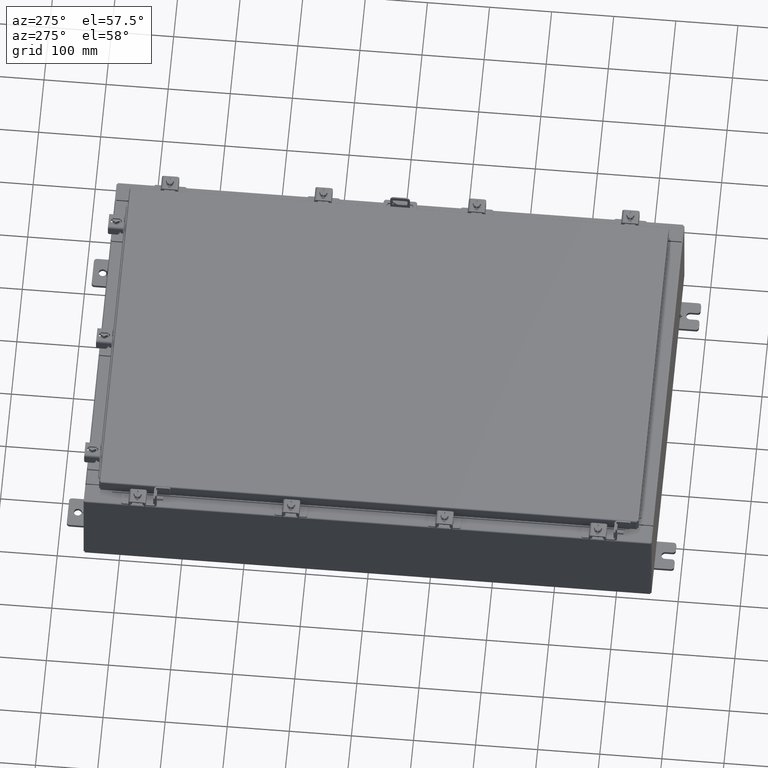
[diagram: clean part render]
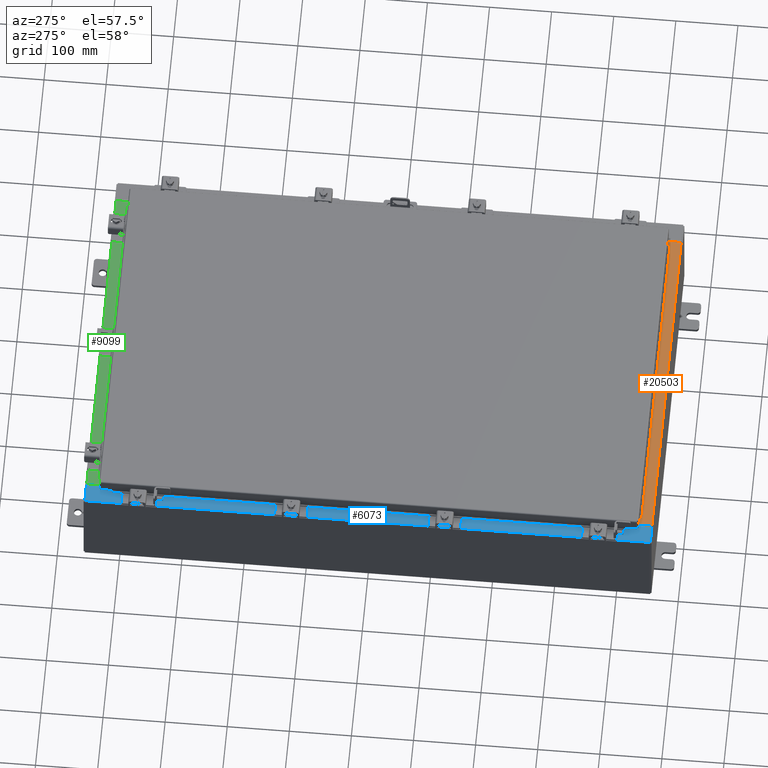
[diagram: same view with three faces highlighted in distinct colors, each labeled with its STEP entity id]
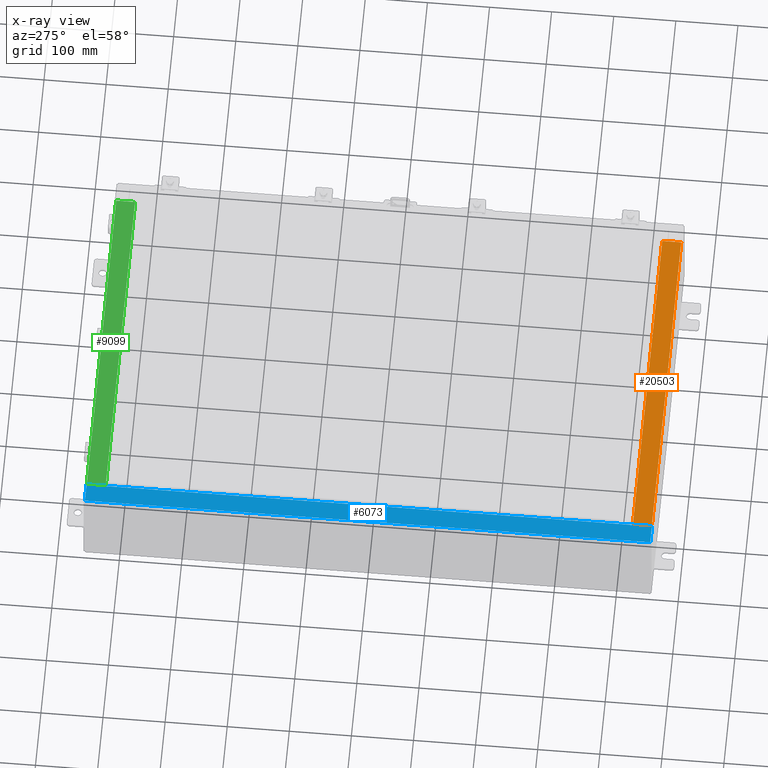
[diagram: x-ray of the same camera — body ghosted, the three highlighted faces saturated]
A machine part, auxiliary view with three faces highlighted in distinct colors.
The next image is the same camera in x-ray (body ghosted, the three faces saturated) — at least one of them is partly hidden behind the body in this view.
Their STEP definitions:

[orange] entity #20503 — the highlighted planar face has unit normal (-0, -0, 1).
#835 = CARTESIAN_POINT ( 'NONE',  ( 10.63720000000000400, -0.08769999999999965300, 3.000000000000000900 ) ) ;
#968 = DIRECTION ( 'NONE',  ( -1.000000000000000000, 0.0000000000000000000, 0.0000000000000000000 ) ) ;
#1266 = AXIS2_PLACEMENT_3D ( 'NONE', #18706, #9745, #22312 ) ;
#1323 = VECTOR ( 'NONE', #12714, 39.37007874015748100 ) ;
#1583 = VERTEX_POINT ( 'NONE', #835 ) ;
#1880 = CARTESIAN_POINT ( 'NONE',  ( -10.63720000000000200, -0.07469999999999973900, 3.000000000000000900 ) ) ;
#2531 = DIRECTION ( 'NONE',  ( -1.000000000000000000, 2.568202152506545800E-017, -9.159187855938968600E-032 ) ) ;
#3093 = DIRECTION ( 'NONE',  ( -0.0000000000000000000, -1.000000000000000000, 3.566381192773190000E-015 ) ) ;
#4469 = CARTESIAN_POINT ( 'NONE',  ( 10.63720000000000400, -1.287299999999999900, 3.000000000000005300 ) ) ;
#4635 = CARTESIAN_POINT ( 'NONE',  ( -10.63720000000000200, -1.287299999999999200, 3.000000000000005300 ) ) ;
#4868 = VECTOR ( 'NONE', #968, 39.37007874015748100 ) ;
#6270 = CARTESIAN_POINT ( 'NONE',  ( -10.63720000000000200, -0.08770000000000000000, 3.000000000000000900 ) ) ;
#6613 = VERTEX_POINT ( 'NONE', #4635 ) ;
#6894 = VECTOR ( 'NONE', #3093, 39.37007874015748100 ) ;
#7909 = ORIENTED_EDGE ( 'NONE', *, *, #11414, .F. ) ;
#7925 = PLANE ( 'NONE',  #1266 ) ;
#8592 = VERTEX_POINT ( 'NONE', #13038 ) ;
#9745 = DIRECTION ( 'NONE',  ( 0.0000000000000000000, 3.566381192773190000E-015, 1.000000000000000000 ) ) ;
#9966 = EDGE_CURVE ( 'NONE', #1583, #18338, #17128, .T. ) ;
#10223 = LINE ( 'NONE', #4469, #4868 ) ;
#10844 = LINE ( 'NONE', #1880, #1323 ) ;
#11414 = EDGE_CURVE ( 'NONE', #6613, #18338, #10844, .T. ) ;
#11614 = EDGE_CURVE ( 'NONE', #1583, #8592, #11685, .T. ) ;
#11685 = LINE ( 'NONE', #22836, #6894 ) ;
#12318 = VECTOR ( 'NONE', #2531, 39.37007874015748100 ) ;
#12651 = EDGE_CURVE ( 'NONE', #8592, #6613, #10223, .T. ) ;
#12714 = DIRECTION ( 'NONE',  ( -0.0000000000000000000, 1.000000000000000000, -3.566381192773190000E-015 ) ) ;
#13038 = CARTESIAN_POINT ( 'NONE',  ( 10.63720000000000200, -1.287299999999999900, 3.000000000000005300 ) ) ;
#13982 = FACE_OUTER_BOUND ( 'NONE', #22625, .T. ) ;
#15523 = ORIENTED_EDGE ( 'NONE', *, *, #12651, .F. ) ;
#17128 = LINE ( 'NONE', #20467, #12318 ) ;
#17861 = ORIENTED_EDGE ( 'NONE', *, *, #9966, .T. ) ;
#18338 = VERTEX_POINT ( 'NONE', #6270 ) ;
#18706 = CARTESIAN_POINT ( 'NONE',  ( 0.0000000000000000000, 1.069354855923099900E-014, 3.000000000000000900 ) ) ;
#20467 = CARTESIAN_POINT ( 'NONE',  ( -2.252313287748515100E-018, -0.08770000000000000000, 3.000000000000001300 ) ) ;
#20503 = ADVANCED_FACE ( 'NONE', ( #13982 ), #7925, .T. ) ;
#22312 = DIRECTION ( 'NONE',  ( 0.0000000000000000000, -1.000000000000000000, 3.566381192773190000E-015 ) ) ;
#22625 = EDGE_LOOP ( 'NONE', ( #7909, #15523, #23213, #17861 ) ) ;
#22836 = CARTESIAN_POINT ( 'NONE',  ( 10.63720000000000200, -1.300299999999999800, 3.000000000000005300 ) ) ;
#23213 = ORIENTED_EDGE ( 'NONE', *, *, #11614, .F. ) ;

[blue] entity #6073 — the highlighted planar face has unit normal (0, 0, -1).
#150 = CARTESIAN_POINT ( 'NONE',  ( -4.252457061909017700E-014, -17.92530000000000400, 5.925300000000084400 ) ) ;
#476 = EDGE_CURVE ( 'NONE', #6417, #7441, #8453, .T. ) ;
#617 = EDGE_CURVE ( 'NONE', #14247, #6417, #1441, .T. ) ;
#778 = CARTESIAN_POINT ( 'NONE',  ( -10.75005000000002100, -16.63110000000000400, 5.925300000000009800 ) ) ;
#885 = EDGE_CURVE ( 'NONE', #19671, #16684, #20808, .T. ) ;
#941 = EDGE_CURVE ( 'NONE', #14247, #15813, #4755, .T. ) ;
#1078 = EDGE_CURVE ( 'NONE', #11605, #15813, #16884, .T. ) ;
#1118 = AXIS2_PLACEMENT_3D ( 'NONE', #7800, #20408, #9627 ) ;
#1213 = EDGE_CURVE ( 'NONE', #11693, #14044, #18838, .T. ) ;
#1241 = ORIENTED_EDGE ( 'NONE', *, *, #1213, .F. ) ;
#1441 = LINE ( 'NONE', #150, #19413 ) ;
#1506 = EDGE_CURVE ( 'NONE', #16684, #10413, #5513, .T. ) ;
#1656 = EDGE_CURVE ( 'NONE', #11693, #11605, #7250, .T. ) ;
#1869 = VECTOR ( 'NONE', #18924, 39.37007874015748100 ) ;
#1944 = VECTOR ( 'NONE', #6608, 39.37007874015748100 ) ;
#2095 = AXIS2_PLACEMENT_3D ( 'NONE', #6501, #5635, #4709 ) ;
#2254 = CARTESIAN_POINT ( 'NONE',  ( -10.75005000000002100, -16.59375000000000400, 5.925300000000008000 ) ) ;
#2839 = PLANE ( 'NONE',  #2095 ) ;
#3027 = CARTESIAN_POINT ( 'NONE',  ( -10.69970000000002100, 17.92529999999999600, 5.925300000000008000 ) ) ;
#3601 = DIRECTION ( 'NONE',  ( -0.0000000000000000000, 1.000000000000000000, -0.0000000000000000000 ) ) ;
#3610 = CARTESIAN_POINT ( 'NONE',  ( -10.75005000000002100, 16.59375000000000000, 5.925300000000009800 ) ) ;
#3643 = VECTOR ( 'NONE', #5730, 39.37007874015748100 ) ;
#3790 = VECTOR ( 'NONE', #23109, 39.37007874015748100 ) ;
#4019 = DIRECTION ( 'NONE',  ( -1.000000000000000000, -2.717614574405841100E-032, -7.132762385546384700E-015 ) ) ;
#4039 = ORIENTED_EDGE ( 'NONE', *, *, #1078, .T. ) ;
#4047 = EDGE_CURVE ( 'NONE', #10413, #7441, #9143, .T. ) ;
#4478 = VECTOR ( 'NONE', #6314, 39.37007874015748100 ) ;
#4709 = DIRECTION ( 'NONE',  ( -1.000000000000000000, 0.0000000000000000000, -7.132762385546384700E-015 ) ) ;
#4755 = LINE ( 'NONE', #12770, #19133 ) ;
#5040 = DIRECTION ( 'NONE',  ( 1.000000000000000000, -4.379057701015054300E-047, 7.132762385546384700E-015 ) ) ;
#5513 = CIRCLE ( 'NONE', #15421, 0.01867499999999949400 ) ;
#5635 = DIRECTION ( 'NONE',  ( 7.132762385546384700E-015, 0.0000000000000000000, -1.000000000000000000 ) ) ;
#5730 = DIRECTION ( 'NONE',  ( -2.076025640262915200E-031, 1.000000000000000000, -1.480779759829717100E-045 ) ) ;
#6073 = ADVANCED_FACE ( 'NONE', ( #14415 ), #2839, .F. ) ;
#6314 = DIRECTION ( 'NONE',  ( -1.000000000000000000, -4.340572780400098900E-014, 2.170286390200049500E-014 ) ) ;
#6417 = VERTEX_POINT ( 'NONE', #20836 ) ;
#6447 = VECTOR ( 'NONE', #18133, 39.37007874015748100 ) ;
#6455 = EDGE_LOOP ( 'NONE', ( #1241, #18126, #4039, #13774, #23032, #17288, #20654, #10491, #11589, #15576, #10286, #9924 ) ) ;
#6501 = CARTESIAN_POINT ( 'NONE',  ( -4.252457061909017700E-014, 0.0000000000000000000, 5.925300000000084400 ) ) ;
#6608 = DIRECTION ( 'NONE',  ( -2.076025640262915200E-031, 1.000000000000000000, -1.480779759829717100E-045 ) ) ;
#7200 = CARTESIAN_POINT ( 'NONE',  ( -11.91230000000002000, 17.92529999999999600, 5.925299999999999100 ) ) ;
#7250 = LINE ( 'NONE', #22663, #1944 ) ;
#7308 = CARTESIAN_POINT ( 'NONE',  ( -10.69970000000002100, 16.63110000000000000, 5.925300000000008900 ) ) ;
#7441 = VERTEX_POINT ( 'NONE', #20310 ) ;
#7800 = CARTESIAN_POINT ( 'NONE',  ( -10.75005000000002100, 16.61242499999999800, 5.925300000000009800 ) ) ;
#7850 = VECTOR ( 'NONE', #4019, 39.37007874015748100 ) ;
#8453 = LINE ( 'NONE', #18628, #3643 ) ;
#8608 = CARTESIAN_POINT ( 'NONE',  ( -10.75005000000002100, 16.63110000000000000, 5.925300000000008000 ) ) ;
#9060 = CARTESIAN_POINT ( 'NONE',  ( -11.91230000000002000, -17.92530000000000400, 5.925299999999999100 ) ) ;
#9143 = LINE ( 'NONE', #778, #3790 ) ;
#9627 = DIRECTION ( 'NONE',  ( 1.000000000000000000, 0.0000000000000000000, 0.0000000000000000000 ) ) ;
#9924 = ORIENTED_EDGE ( 'NONE', *, *, #21494, .F. ) ;
#10286 = ORIENTED_EDGE ( 'NONE', *, *, #21966, .F. ) ;
#10413 = VERTEX_POINT ( 'NONE', #16942 ) ;
#10491 = ORIENTED_EDGE ( 'NONE', *, *, #1506, .F. ) ;
#10816 = CIRCLE ( 'NONE', #1118, 0.01867499999999949400 ) ;
#11165 = CARTESIAN_POINT ( 'NONE',  ( -10.71270000000002100, -16.59375000000000400, 5.925300000000009800 ) ) ;
#11589 = ORIENTED_EDGE ( 'NONE', *, *, #885, .F. ) ;
#11605 = VERTEX_POINT ( 'NONE', #3027 ) ;
#11693 = VERTEX_POINT ( 'NONE', #12143 ) ;
#12143 = CARTESIAN_POINT ( 'NONE',  ( -10.69970000000002100, 16.63110000000000000, 5.925300000000008000 ) ) ;
#12729 = CARTESIAN_POINT ( 'NONE',  ( -10.75005000000002100, -16.61242500000000200, 5.925300000000009800 ) ) ;
#12770 = CARTESIAN_POINT ( 'NONE',  ( -11.91230000000002000, 17.92529999999999600, 5.925299999999999100 ) ) ;
#13774 = ORIENTED_EDGE ( 'NONE', *, *, #941, .F. ) ;
#13799 = CARTESIAN_POINT ( 'NONE',  ( -4.252457061909017700E-014, 17.92529999999999600, 5.925300000000084400 ) ) ;
#14044 = VERTEX_POINT ( 'NONE', #8608 ) ;
#14247 = VERTEX_POINT ( 'NONE', #9060 ) ;
#14415 = FACE_OUTER_BOUND ( 'NONE', #6455, .T. ) ;
#14828 = CARTESIAN_POINT ( 'NONE',  ( -10.71270000000002100, 16.59375000000000000, 5.925300000000009800 ) ) ;
#15227 = VERTEX_POINT ( 'NONE', #19837 ) ;
#15421 = AXIS2_PLACEMENT_3D ( 'NONE', #12729, #15516, #20817 ) ;
#15516 = DIRECTION ( 'NONE',  ( -7.132762385546384700E-015, -0.0000000000000000000, 1.000000000000000000 ) ) ;
#15576 = ORIENTED_EDGE ( 'NONE', *, *, #20897, .F. ) ;
#15813 = VERTEX_POINT ( 'NONE', #7200 ) ;
#16213 = LINE ( 'NONE', #17139, #1869 ) ;
#16228 = DIRECTION ( 'NONE',  ( 1.000000000000000000, 0.0000000000000000000, 0.0000000000000000000 ) ) ;
#16492 = VECTOR ( 'NONE', #16228, 39.37007874015748100 ) ;
#16681 = VERTEX_POINT ( 'NONE', #14828 ) ;
#16684 = VERTEX_POINT ( 'NONE', #2254 ) ;
#16884 = LINE ( 'NONE', #13799, #7850 ) ;
#16942 = CARTESIAN_POINT ( 'NONE',  ( -10.75005000000002100, -16.63110000000000400, 5.925300000000008000 ) ) ;
#17139 = CARTESIAN_POINT ( 'NONE',  ( -10.71270000000002100, 16.59375000000000000, 5.925300000000009800 ) ) ;
#17265 = CARTESIAN_POINT ( 'NONE',  ( -10.71270000000002100, -16.59375000000000400, 5.925300000000009800 ) ) ;
#17288 = ORIENTED_EDGE ( 'NONE', *, *, #476, .T. ) ;
#18126 = ORIENTED_EDGE ( 'NONE', *, *, #1656, .T. ) ;
#18133 = DIRECTION ( 'NONE',  ( -1.000000000000000000, 0.0000000000000000000, 0.0000000000000000000 ) ) ;
#18628 = CARTESIAN_POINT ( 'NONE',  ( -10.69970000000002100, -2.221285154312107200E-030, 5.925300000000008000 ) ) ;
#18838 = LINE ( 'NONE', #7308, #4478 ) ;
#18924 = DIRECTION ( 'NONE',  ( -0.0000000000000000000, -1.000000000000000000, -0.0000000000000000000 ) ) ;
#19133 = VECTOR ( 'NONE', #3601, 39.37007874015748100 ) ;
#19413 = VECTOR ( 'NONE', #5040, 39.37007874015748100 ) ;
#19671 = VERTEX_POINT ( 'NONE', #11165 ) ;
#19837 = CARTESIAN_POINT ( 'NONE',  ( -10.75005000000002100, 16.59375000000000000, 5.925300000000008000 ) ) ;
#20310 = CARTESIAN_POINT ( 'NONE',  ( -10.69970000000002100, -16.63110000000000700, 5.925300000000008000 ) ) ;
#20408 = DIRECTION ( 'NONE',  ( -7.132762385546384700E-015, -0.0000000000000000000, 1.000000000000000000 ) ) ;
#20654 = ORIENTED_EDGE ( 'NONE', *, *, #4047, .F. ) ;
#20808 = LINE ( 'NONE', #17265, #6447 ) ;
#20817 = DIRECTION ( 'NONE',  ( 1.000000000000000000, 0.0000000000000000000, 0.0000000000000000000 ) ) ;
#20836 = CARTESIAN_POINT ( 'NONE',  ( -10.69970000000002100, -17.92530000000000400, 5.925300000000008000 ) ) ;
#20897 = EDGE_CURVE ( 'NONE', #16681, #19671, #16213, .T. ) ;
#21494 = EDGE_CURVE ( 'NONE', #14044, #15227, #10816, .T. ) ;
#21966 = EDGE_CURVE ( 'NONE', #15227, #16681, #22947, .T. ) ;
#22663 = CARTESIAN_POINT ( 'NONE',  ( -10.69970000000002100, -2.221285154312107200E-030, 5.925300000000008000 ) ) ;
#22947 = LINE ( 'NONE', #3610, #16492 ) ;
#23032 = ORIENTED_EDGE ( 'NONE', *, *, #617, .T. ) ;
#23109 = DIRECTION ( 'NONE',  ( 1.000000000000000000, -4.340572780400098900E-014, -2.170286390200049500E-014 ) ) ;

[green] entity #9099 — the highlighted planar face has unit normal (0, 0, 1).
#3353 = ORIENTED_EDGE ( 'NONE', *, *, #11538, .T. ) ;
#3389 = VERTEX_POINT ( 'NONE', #19983 ) ;
#3512 = VERTEX_POINT ( 'NONE', #7107 ) ;
#3634 = DIRECTION ( 'NONE',  ( 0.0000000000000000000, -1.000000000000000000, 3.566381192773190000E-015 ) ) ;
#3829 = CARTESIAN_POINT ( 'NONE',  ( 10.63720000000000400, -0.08769999999999965300, 3.000000000000000900 ) ) ;
#4014 = VERTEX_POINT ( 'NONE', #3829 ) ;
#4129 = CARTESIAN_POINT ( 'NONE',  ( -10.63720000000000200, -0.07469999999999973900, 3.000000000000000900 ) ) ;
#5349 = PLANE ( 'NONE',  #22906 ) ;
#5395 = VERTEX_POINT ( 'NONE', #6240 ) ;
#5670 = VECTOR ( 'NONE', #16335, 39.37007874015748100 ) ;
#5803 = EDGE_CURVE ( 'NONE', #5395, #3389, #20059, .T. ) ;
#6232 = ORIENTED_EDGE ( 'NONE', *, *, #5803, .F. ) ;
#6240 = CARTESIAN_POINT ( 'NONE',  ( 10.63720000000000200, -1.287299999999999900, 3.000000000000005300 ) ) ;
#6471 = DIRECTION ( 'NONE',  ( -1.000000000000000000, 2.568202152506545800E-017, -9.159187855938968600E-032 ) ) ;
#7107 = CARTESIAN_POINT ( 'NONE',  ( -10.63720000000000200, -0.08770000000000000000, 3.000000000000000900 ) ) ;
#8605 = VECTOR ( 'NONE', #6471, 39.37007874015748100 ) ;
#8682 = EDGE_CURVE ( 'NONE', #3389, #3512, #11183, .T. ) ;
#9099 = ADVANCED_FACE ( 'NONE', ( #9544 ), #5349, .T. ) ;
#9544 = FACE_OUTER_BOUND ( 'NONE', #14438, .T. ) ;
#9565 = DIRECTION ( 'NONE',  ( -0.0000000000000000000, 1.000000000000000000, -3.566381192773190000E-015 ) ) ;
#10073 = VECTOR ( 'NONE', #9565, 39.37007874015748100 ) ;
#10245 = LINE ( 'NONE', #17544, #19273 ) ;
#10796 = CARTESIAN_POINT ( 'NONE',  ( 0.0000000000000000000, 1.069354855923099900E-014, 3.000000000000000900 ) ) ;
#11183 = LINE ( 'NONE', #4129, #10073 ) ;
#11450 = ORIENTED_EDGE ( 'NONE', *, *, #8682, .F. ) ;
#11538 = EDGE_CURVE ( 'NONE', #4014, #3512, #13411, .T. ) ;
#11953 = ORIENTED_EDGE ( 'NONE', *, *, #12171, .F. ) ;
#12171 = EDGE_CURVE ( 'NONE', #4014, #5395, #10245, .T. ) ;
#13411 = LINE ( 'NONE', #20501, #8605 ) ;
#14429 = DIRECTION ( 'NONE',  ( 0.0000000000000000000, 3.566381192773190000E-015, 1.000000000000000000 ) ) ;
#14438 = EDGE_LOOP ( 'NONE', ( #11450, #6232, #11953, #3353 ) ) ;
#16177 = CARTESIAN_POINT ( 'NONE',  ( 10.63720000000000400, -1.287299999999999900, 3.000000000000005300 ) ) ;
#16335 = DIRECTION ( 'NONE',  ( -1.000000000000000000, 0.0000000000000000000, 0.0000000000000000000 ) ) ;
#17544 = CARTESIAN_POINT ( 'NONE',  ( 10.63720000000000200, -1.300299999999999800, 3.000000000000005300 ) ) ;
#19273 = VECTOR ( 'NONE', #19358, 39.37007874015748100 ) ;
#19358 = DIRECTION ( 'NONE',  ( -0.0000000000000000000, -1.000000000000000000, 3.566381192773190000E-015 ) ) ;
#19983 = CARTESIAN_POINT ( 'NONE',  ( -10.63720000000000200, -1.287299999999999200, 3.000000000000005300 ) ) ;
#20059 = LINE ( 'NONE', #16177, #5670 ) ;
#20501 = CARTESIAN_POINT ( 'NONE',  ( -2.252313287748515100E-018, -0.08770000000000000000, 3.000000000000001300 ) ) ;
#22906 = AXIS2_PLACEMENT_3D ( 'NONE', #10796, #14429, #3634 ) ;